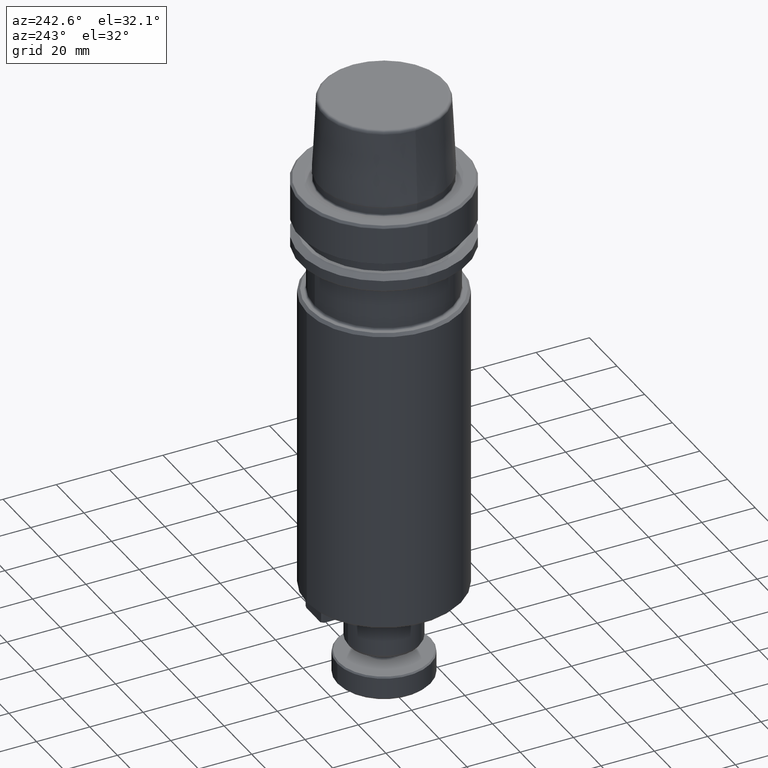
[diagram: clean part render]
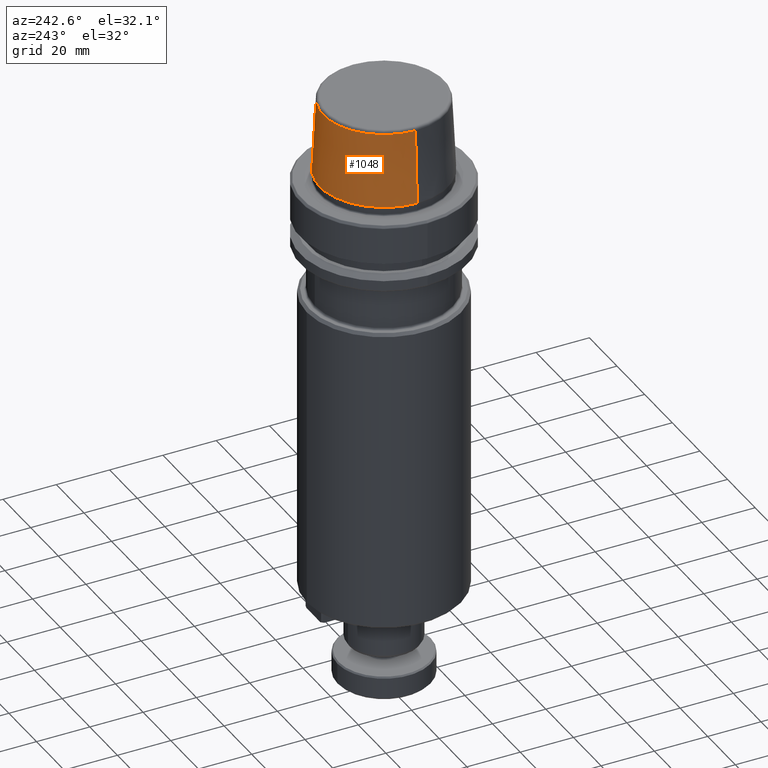
[diagram: same view with one face highlighted and labeled with its STEP entity id]
A machine part, auxiliary view. The second image highlights one B-rep face of the part: STEP entity #1048.
In plain terms, the highlighted conical surface has half-angle 2.868 deg.
Its self-contained STEP definition (entity closure, byte-faithful):
#26 = DIRECTION ( 'NONE',  ( 1.000000000000000000, 0.0000000000000000000, 0.0000000000000000000 ) ) ;
#48 = CARTESIAN_POINT ( 'NONE',  ( -22.77957961851797100, 0.0000000000000000000, 30.76004333261571900 ) ) ;
#88 = VECTOR ( 'NONE', #597, 1000.000000000000200 ) ;
#114 = LINE ( 'NONE', #1472, #2484 ) ;
#196 = AXIS2_PLACEMENT_3D ( 'NONE', #1194, #738, #2830 ) ;
#250 = AXIS2_PLACEMENT_3D ( 'NONE', #1612, #1025, #2630 ) ;
#261 = EDGE_CURVE ( 'NONE', #459, #1632, #838, .T. ) ;
#308 = FACE_OUTER_BOUND ( 'NONE', #515, .T. ) ;
#325 = EDGE_CURVE ( 'NONE', #1013, #1851, #2391, .T. ) ;
#459 = VERTEX_POINT ( 'NONE', #2904 ) ;
#515 = EDGE_LOOP ( 'NONE', ( #2019, #2173, #623, #2740 ) ) ;
#578 = DIRECTION ( 'NONE',  ( 0.05003611051310812000, 6.127656258166108900E-018, -0.9987474093306675200 ) ) ;
#597 = DIRECTION ( 'NONE',  ( -0.05003611051310812000, 0.0000000000000000000, -0.9987474093306675200 ) ) ;
#623 = ORIENTED_EDGE ( 'NONE', *, *, #325, .T. ) ;
#738 = DIRECTION ( 'NONE',  ( 0.0000000000000000000, 0.0000000000000000000, -1.000000000000000000 ) ) ;
#838 = CIRCLE ( 'NONE', #2144, 22.77957961851797100 ) ;
#998 = EDGE_CURVE ( 'NONE', #459, #1013, #114, .T. ) ;
#1013 = VERTEX_POINT ( 'NONE', #1633 ) ;
#1025 = DIRECTION ( 'NONE',  ( -0.0000000000000000000, -0.0000000000000000000, 1.000000000000000000 ) ) ;
#1048 = ADVANCED_FACE ( 'NONE', ( #308 ), #1432, .T. ) ;
#1194 = CARTESIAN_POINT ( 'NONE',  ( 0.0000000000000000000, 0.0000000000000000000, 3.000000000000002700 ) ) ;
#1274 = CARTESIAN_POINT ( 'NONE',  ( -24.17032625081241900, 0.0000000000000000000, 3.000000000000002700 ) ) ;
#1383 = DIRECTION ( 'NONE',  ( -0.0000000000000000000, -0.0000000000000000000, 1.000000000000000000 ) ) ;
#1432 = CONICAL_SURFACE ( 'NONE', #196, 24.17032625081241900, 0.05005701257456005000 ) ;
#1472 = CARTESIAN_POINT ( 'NONE',  ( 24.17032625081241900, 2.960011267740467600E-015, 3.000000000000002700 ) ) ;
#1612 = CARTESIAN_POINT ( 'NONE',  ( 0.0000000000000000000, 0.0000000000000000000, 3.000000000000002700 ) ) ;
#1632 = VERTEX_POINT ( 'NONE', #48 ) ;
#1633 = CARTESIAN_POINT ( 'NONE',  ( 24.17032625081241900, 0.0000000000000000000, 3.000000000000002700 ) ) ;
#1851 = VERTEX_POINT ( 'NONE', #2023 ) ;
#1918 = EDGE_CURVE ( 'NONE', #1632, #1851, #2526, .T. ) ;
#2019 = ORIENTED_EDGE ( 'NONE', *, *, #261, .F. ) ;
#2023 = CARTESIAN_POINT ( 'NONE',  ( -24.17032625081241900, 2.960011267740467600E-015, 3.000000000000002700 ) ) ;
#2144 = AXIS2_PLACEMENT_3D ( 'NONE', #2787, #1383, #26 ) ;
#2173 = ORIENTED_EDGE ( 'NONE', *, *, #998, .T. ) ;
#2391 = CIRCLE ( 'NONE', #250, 24.17032625081241900 ) ;
#2484 = VECTOR ( 'NONE', #578, 1000.000000000000200 ) ;
#2526 = LINE ( 'NONE', #1274, #88 ) ;
#2630 = DIRECTION ( 'NONE',  ( 1.000000000000000000, 0.0000000000000000000, 0.0000000000000000000 ) ) ;
#2740 = ORIENTED_EDGE ( 'NONE', *, *, #1918, .F. ) ;
#2787 = CARTESIAN_POINT ( 'NONE',  ( 0.0000000000000000000, 0.0000000000000000000, 30.76004333261571900 ) ) ;
#2830 = DIRECTION ( 'NONE',  ( -1.000000000000000000, 0.0000000000000000000, 0.0000000000000000000 ) ) ;
#2904 = CARTESIAN_POINT ( 'NONE',  ( 22.77957961851797100, 2.874852597157249900E-015, 30.76004333261571900 ) ) ;